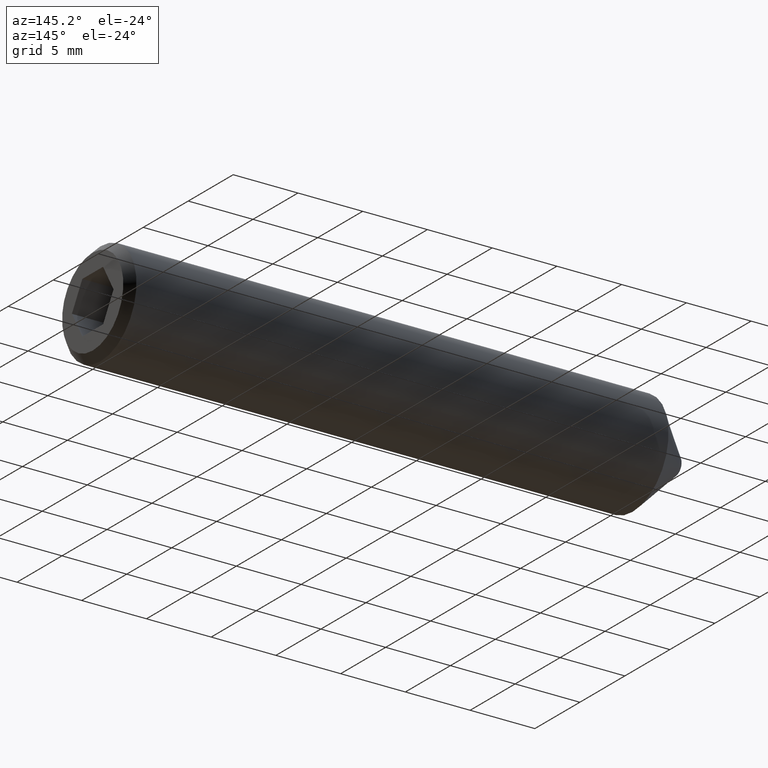
[diagram: clean part render]
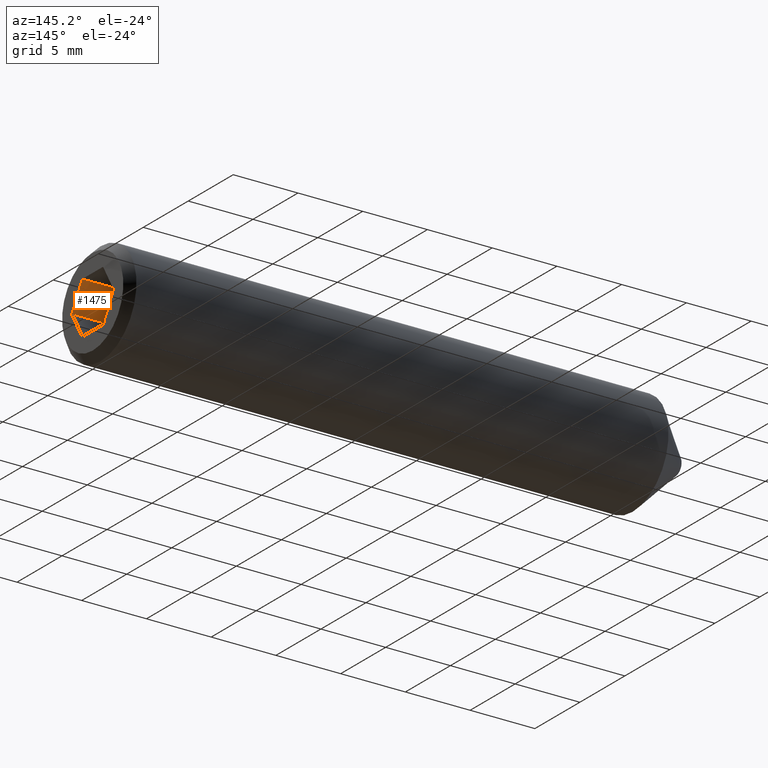
[diagram: same view with one face highlighted and labeled with its STEP entity id]
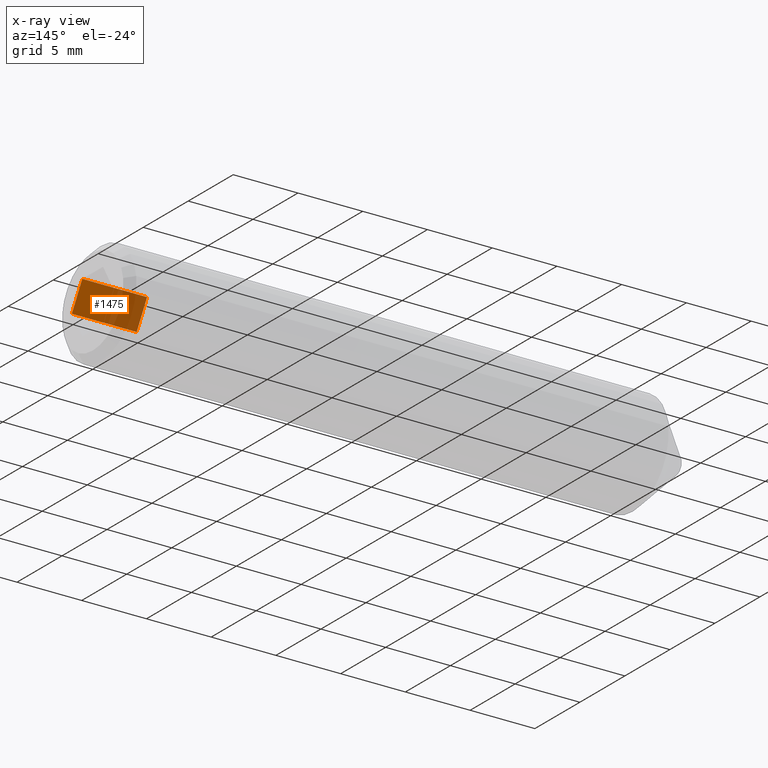
[diagram: x-ray of the same camera — body ghosted, the highlighted face saturated]
A machine part, auxiliary view. The second image highlights one B-rep face of the part: STEP entity #1475.
The next image is the same camera in x-ray: the body ghosted, the highlighted face saturated — about 44% of this face is hidden behind the body in this view.
In plain terms, the highlighted planar face has unit normal (-0, -0.866, 0.5).
Its self-contained STEP definition (entity closure, byte-faithful):
#381 = DIRECTION ( 'NONE',  ( 0.0000000000000000000, -0.5000000000000000000, -0.8660254037844386000 ) ) ;
#1030 = ORIENTED_EDGE ( 'NONE', *, *, #9912, .F. ) ;
#1079 = CARTESIAN_POINT ( 'NONE',  ( 40.00000000000000000, -1.154700538379251000, 1.999999999999999600 ) ) ;
#1475 = ADVANCED_FACE ( 'NONE', ( #9982 ), #6967, .F. ) ;
#1606 = DIRECTION ( 'NONE',  ( 1.000000000000000000, -0.0000000000000000000, 6.123031769111886300E-017 ) ) ;
#1813 = VERTEX_POINT ( 'NONE', #5600 ) ;
#2058 = VECTOR ( 'NONE', #2930, 1000.000000000000000 ) ;
#2534 = ORIENTED_EDGE ( 'NONE', *, *, #11050, .F. ) ;
#2930 = DIRECTION ( 'NONE',  ( 1.000000000000000000, -0.0000000000000000000, 6.123031769111886300E-017 ) ) ;
#3093 = VECTOR ( 'NONE', #5784, 1000.000000000000100 ) ;
#3334 = EDGE_CURVE ( 'NONE', #1813, #9258, #7070, .T. ) ;
#4183 = CARTESIAN_POINT ( 'NONE',  ( 40.00000000000000000, -1.154700538379251000, 1.999999999999999600 ) ) ;
#4380 = LINE ( 'NONE', #1079, #3093 ) ;
#4523 = LINE ( 'NONE', #6527, #2058 ) ;
#4887 = CARTESIAN_POINT ( 'NONE',  ( 45.00000000000000000, -1.154700538379251000, 2.000000000000000000 ) ) ;
#5600 = CARTESIAN_POINT ( 'NONE',  ( 40.00000000000000000, -1.154700538379251000, 1.999999999999999600 ) ) ;
#5784 = DIRECTION ( 'NONE',  ( 0.0000000000000000000, -0.4999999999999999400, -0.8660254037844386000 ) ) ;
#5836 = DIRECTION ( 'NONE',  ( 0.0000000000000000000, -0.4999999999999999400, -0.8660254037844386000 ) ) ;
#6122 = LINE ( 'NONE', #7778, #11729 ) ;
#6231 = AXIS2_PLACEMENT_3D ( 'NONE', #4183, #11437, #381 ) ;
#6306 = VERTEX_POINT ( 'NONE', #9896 ) ;
#6527 = CARTESIAN_POINT ( 'NONE',  ( 40.00000000000000000, -2.309401076758502500, 1.256016596573813500E-016 ) ) ;
#6967 = PLANE ( 'NONE',  #6231 ) ;
#7070 = LINE ( 'NONE', #11807, #8652 ) ;
#7315 = VERTEX_POINT ( 'NONE', #9057 ) ;
#7778 = CARTESIAN_POINT ( 'NONE',  ( 45.00000000000000000, -1.154700538379251000, 2.000000000000000000 ) ) ;
#8182 = ORIENTED_EDGE ( 'NONE', *, *, #10687, .T. ) ;
#8652 = VECTOR ( 'NONE', #1606, 1000.000000000000000 ) ;
#9057 = CARTESIAN_POINT ( 'NONE',  ( 45.00000000000000000, -2.309401076758502900, 2.168404344971008900E-016 ) ) ;
#9146 = EDGE_LOOP ( 'NONE', ( #8182, #1030, #2534, #10001 ) ) ;
#9258 = VERTEX_POINT ( 'NONE', #4887 ) ;
#9896 = CARTESIAN_POINT ( 'NONE',  ( 40.00000000000000000, -2.309401076758502500, 1.256016596573813500E-016 ) ) ;
#9912 = EDGE_CURVE ( 'NONE', #6306, #7315, #4523, .T. ) ;
#9982 = FACE_OUTER_BOUND ( 'NONE', #9146, .T. ) ;
#10001 = ORIENTED_EDGE ( 'NONE', *, *, #3334, .T. ) ;
#10687 = EDGE_CURVE ( 'NONE', #9258, #7315, #6122, .T. ) ;
#11050 = EDGE_CURVE ( 'NONE', #1813, #6306, #4380, .T. ) ;
#11437 = DIRECTION ( 'NONE',  ( -3.061515884555943800E-017, -0.8660254037844387100, 0.5000000000000001100 ) ) ;
#11729 = VECTOR ( 'NONE', #5836, 1000.000000000000100 ) ;
#11807 = CARTESIAN_POINT ( 'NONE',  ( 40.00000000000000000, -1.154700538379251000, 1.999999999999999600 ) ) ;